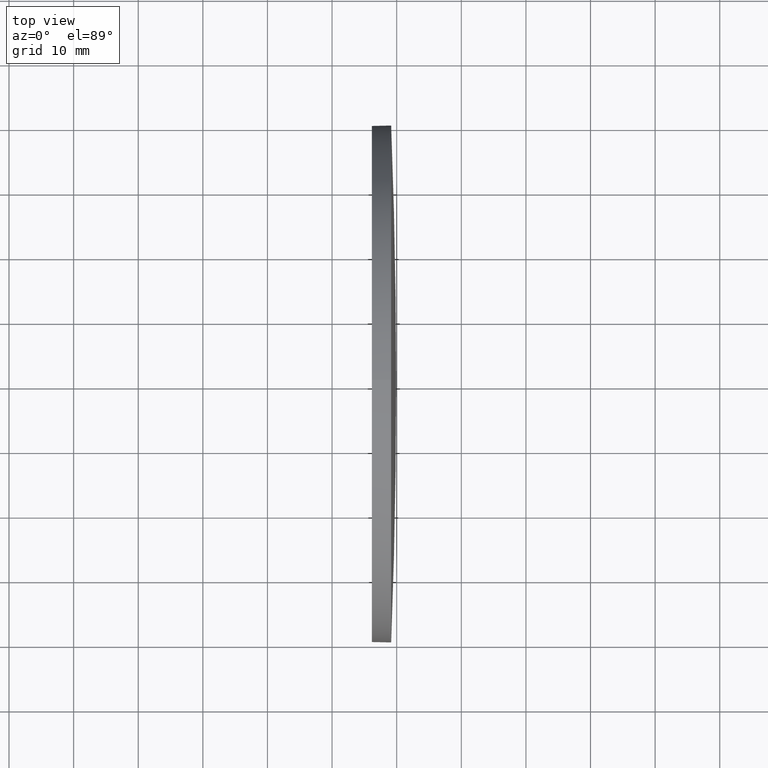
[diagram: clean part render]
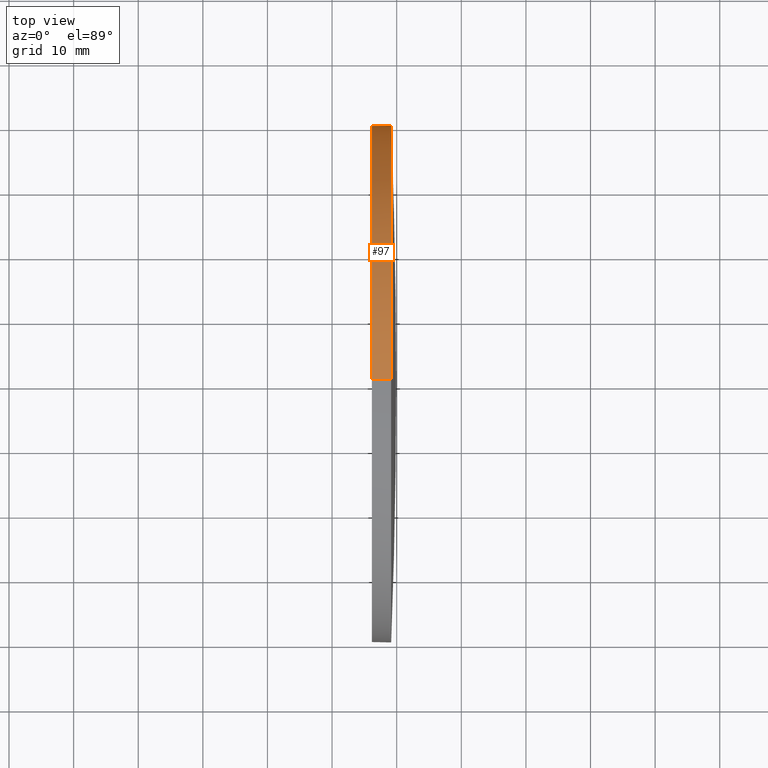
[diagram: same view with one face highlighted and labeled with its STEP entity id]
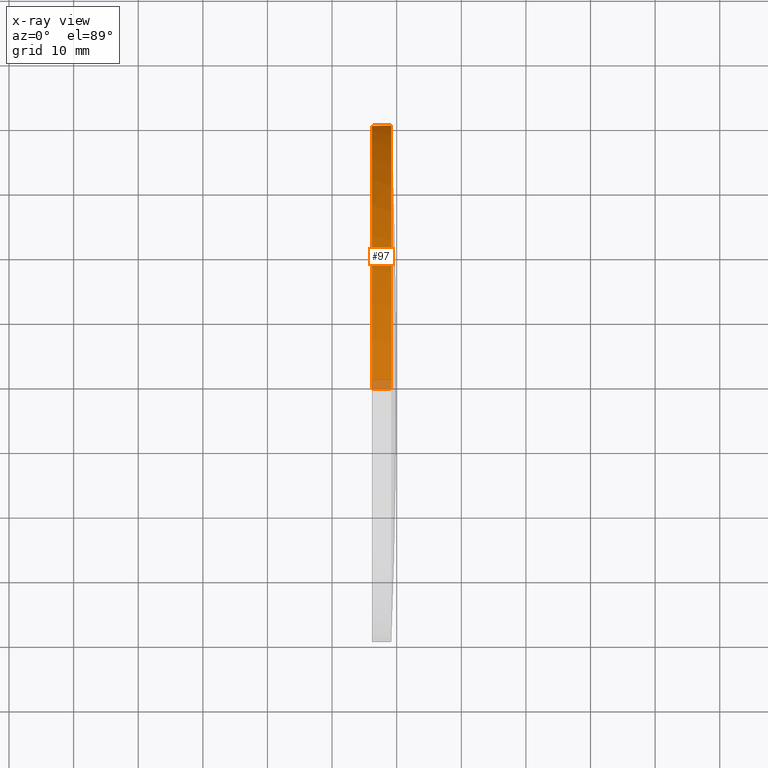
[diagram: x-ray of the same camera — body ghosted, the highlighted face saturated]
A machine part, top view. The second image highlights one B-rep face of the part: STEP entity #97.
The next image is the same camera in x-ray: the body ghosted, the highlighted face saturated — about 3% of this face is hidden behind the body in this view.
In plain terms, the highlighted cylindrical surface (partial cylindrical patch) has radius 40 mm, axis along (-1, -0, -0).
Its self-contained STEP definition (entity closure, byte-faithful):
#6 = EDGE_CURVE ( 'NONE', #180, #106, #55, .T. ) ;
#7 = DIRECTION ( 'NONE',  ( 0.0000000000000000000, 0.0000000000000000000, 1.000000000000000000 ) ) ;
#9 = LINE ( 'NONE', #98, #114 ) ;
#17 = LINE ( 'NONE', #129, #156 ) ;
#21 = EDGE_CURVE ( 'NONE', #85, #106, #9, .T. ) ;
#22 = ORIENTED_EDGE ( 'NONE', *, *, #112, .T. ) ;
#23 = DIRECTION ( 'NONE',  ( -1.000000000000000000, -0.0000000000000000000, -0.0000000000000000000 ) ) ;
#26 = AXIS2_PLACEMENT_3D ( 'NONE', #171, #132, #120 ) ;
#44 = DIRECTION ( 'NONE',  ( -1.000000000000000000, -0.0000000000000000000, -0.0000000000000000000 ) ) ;
#46 = CARTESIAN_POINT ( 'NONE',  ( 239.1461263384603600, 130.0418907599245100, -40.00000000000000700 ) ) ;
#55 = CIRCLE ( 'NONE', #72, 40.00000000000000700 ) ;
#60 = CARTESIAN_POINT ( 'NONE',  ( 239.1461263384603600, 130.0418907599245100, 0.0000000000000000000 ) ) ;
#63 = CARTESIAN_POINT ( 'NONE',  ( 239.1461263384604500, 170.0418907599239400, 4.898587196589211100E-015 ) ) ;
#66 = AXIS2_PLACEMENT_3D ( 'NONE', #116, #167, #74 ) ;
#67 = ORIENTED_EDGE ( 'NONE', *, *, #21, .T. ) ;
#72 = AXIS2_PLACEMENT_3D ( 'NONE', #125, #165, #7 ) ;
#74 = DIRECTION ( 'NONE',  ( 0.0000000000000000000, 0.0000000000000000000, 1.000000000000000000 ) ) ;
#83 = DIRECTION ( 'NONE',  ( -1.000000000000000000, -0.0000000000000000000, -0.0000000000000000000 ) ) ;
#85 = VERTEX_POINT ( 'NONE', #46 ) ;
#89 = CIRCLE ( 'NONE', #26, 40.00000000000000700 ) ;
#97 = ADVANCED_FACE ( 'NONE', ( #126 ), #163, .T. ) ;
#98 = CARTESIAN_POINT ( 'NONE',  ( 217.3311486608872700, 130.0418907599245100, -40.00000000000000700 ) ) ;
#101 = CARTESIAN_POINT ( 'NONE',  ( 236.1561263384603500, 130.0418907599245100, -40.00000000000000700 ) ) ;
#106 = VERTEX_POINT ( 'NONE', #101 ) ;
#107 = VERTEX_POINT ( 'NONE', #113 ) ;
#112 = EDGE_CURVE ( 'NONE', #107, #140, #89, .T. ) ;
#113 = CARTESIAN_POINT ( 'NONE',  ( 239.1461263384603600, 130.0418907599245100, 40.00000000000000700 ) ) ;
#114 = VECTOR ( 'NONE', #83, 1000.000000000000000 ) ;
#116 = CARTESIAN_POINT ( 'NONE',  ( 217.3311486608872700, 130.0418907599245100, 0.0000000000000000000 ) ) ;
#118 = EDGE_CURVE ( 'NONE', #140, #85, #122, .T. ) ;
#120 = DIRECTION ( 'NONE',  ( 0.0000000000000000000, 0.0000000000000000000, 1.000000000000000000 ) ) ;
#122 = CIRCLE ( 'NONE', #136, 40.00000000000000700 ) ;
#125 = CARTESIAN_POINT ( 'NONE',  ( 236.1561263384603500, 130.0418907599245100, 0.0000000000000000000 ) ) ;
#126 = FACE_OUTER_BOUND ( 'NONE', #137, .T. ) ;
#128 = ORIENTED_EDGE ( 'NONE', *, *, #162, .F. ) ;
#129 = CARTESIAN_POINT ( 'NONE',  ( 217.3311486608872700, 130.0418907599245100, 40.00000000000000700 ) ) ;
#131 = CARTESIAN_POINT ( 'NONE',  ( 236.1561263384603500, 130.0418907599245100, 40.00000000000000700 ) ) ;
#132 = DIRECTION ( 'NONE',  ( -1.000000000000000000, -0.0000000000000000000, -0.0000000000000000000 ) ) ;
#136 = AXIS2_PLACEMENT_3D ( 'NONE', #60, #23, #150 ) ;
#137 = EDGE_LOOP ( 'NONE', ( #186, #67, #148, #128, #22 ) ) ;
#140 = VERTEX_POINT ( 'NONE', #63 ) ;
#148 = ORIENTED_EDGE ( 'NONE', *, *, #6, .F. ) ;
#150 = DIRECTION ( 'NONE',  ( 0.0000000000000000000, 0.0000000000000000000, 1.000000000000000000 ) ) ;
#156 = VECTOR ( 'NONE', #44, 1000.000000000000000 ) ;
#162 = EDGE_CURVE ( 'NONE', #107, #180, #17, .T. ) ;
#163 = CYLINDRICAL_SURFACE ( 'NONE', #66, 40.00000000000000700 ) ;
#165 = DIRECTION ( 'NONE',  ( -1.000000000000000000, -0.0000000000000000000, -0.0000000000000000000 ) ) ;
#167 = DIRECTION ( 'NONE',  ( -1.000000000000000000, -0.0000000000000000000, -0.0000000000000000000 ) ) ;
#171 = CARTESIAN_POINT ( 'NONE',  ( 239.1461263384603600, 130.0418907599245100, 0.0000000000000000000 ) ) ;
#180 = VERTEX_POINT ( 'NONE', #131 ) ;
#186 = ORIENTED_EDGE ( 'NONE', *, *, #118, .T. ) ;